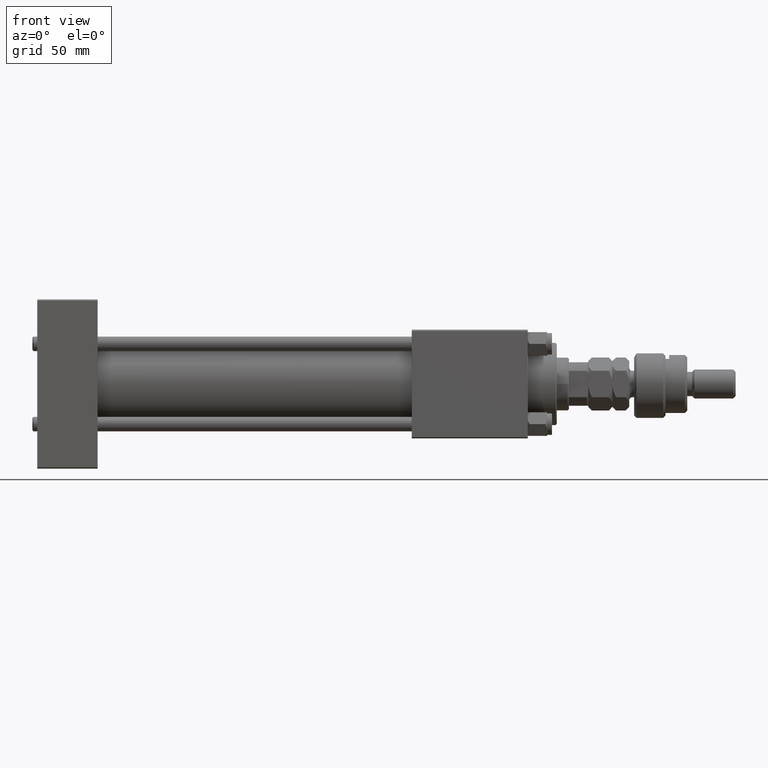
[diagram: clean part render]
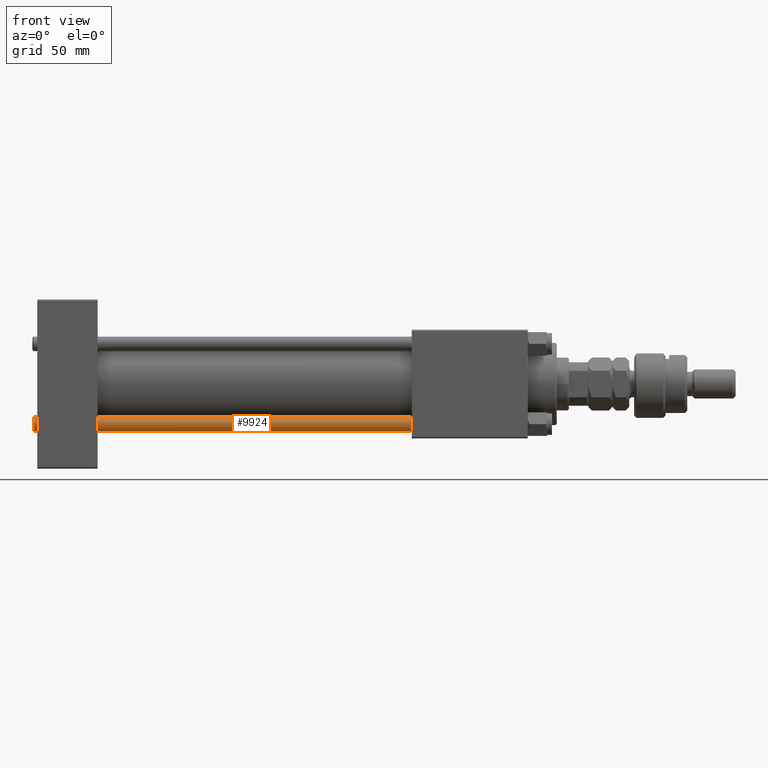
[diagram: same view with one face highlighted and labeled with its STEP entity id]
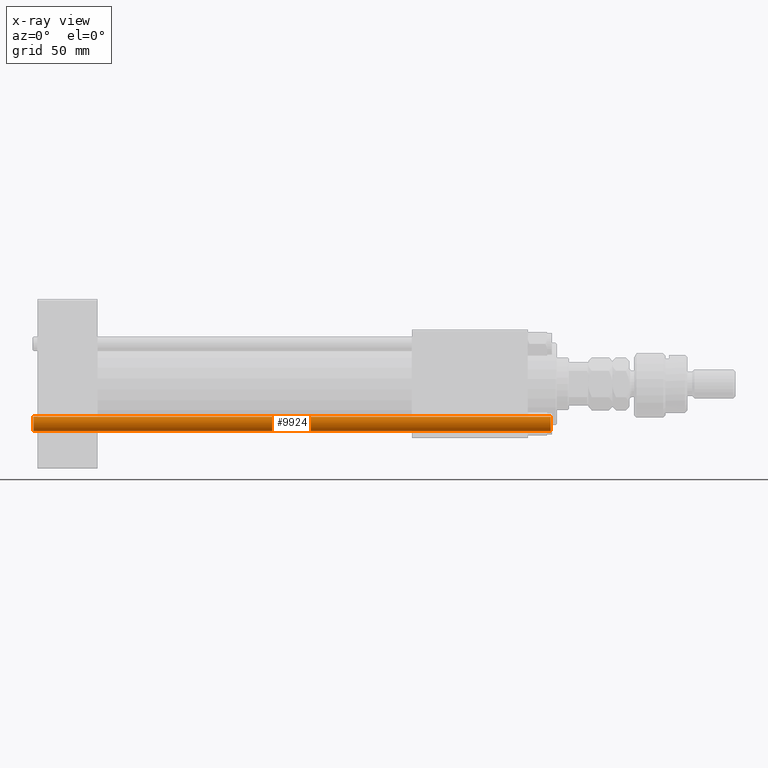
[diagram: x-ray of the same camera — body ghosted, the highlighted face saturated]
A machine part, front view. The second image highlights one B-rep face of the part: STEP entity #9924.
The next image is the same camera in x-ray: the body ghosted, the highlighted face saturated — about 0% of this face is hidden behind the body in this view.
In plain terms, the highlighted cylindrical surface (edge-blend (fillet) strip) has radius 3 mm, axis along (1, -0, -0).
Its self-contained STEP definition (entity closure, byte-faithful):
#524 = ORIENTED_EDGE ( 'NONE', *, *, #17818, .F. ) ;
#3809 = CARTESIAN_POINT ( 'NONE',  ( 3.000000000000000444, 3.673940397442060361E-16, 214.5000000000000000 ) ) ;
#4726 = DIRECTION ( 'NONE',  ( -0.000000000000000000, -0.000000000000000000, 1.000000000000000000 ) ) ;
#6153 = EDGE_CURVE ( 'NONE', #12154, #14172, #27921, .T. ) ;
#9924 = ADVANCED_FACE ( 'NONE', ( #25511 ), #20455, .T. ) ;
#11975 = VERTEX_POINT ( 'NONE', #31442 ) ;
#12154 = VERTEX_POINT ( 'NONE', #50849 ) ;
#13320 = CARTESIAN_POINT ( 'NONE',  ( 3.000000000000000444, 3.673940397442060361E-16, 215.0000000000000000 ) ) ;
#14172 = VERTEX_POINT ( 'NONE', #21910 ) ;
#17557 = ORIENTED_EDGE ( 'NONE', *, *, #43643, .T. ) ;
#17818 = EDGE_CURVE ( 'NONE', #22647, #14172, #24553, .T. ) ;
#18241 = VECTOR ( 'NONE', #41212, 1000.000000000000000 ) ;
#18503 = CARTESIAN_POINT ( 'NONE',  ( 0.000000000000000000, 0.000000000000000000, 214.5000000000000000 ) ) ;
#20455 = CYLINDRICAL_SURFACE ( 'NONE', #24641, 3.000000000000000444 ) ;
#21910 = CARTESIAN_POINT ( 'NONE',  ( 3.000000000000000444, 3.673940397442060361E-16, 0.5000000000000559552 ) ) ;
#22647 = VERTEX_POINT ( 'NONE', #3809 ) ;
#22759 = DIRECTION ( 'NONE',  ( 0.000000000000000000, 0.000000000000000000, -1.000000000000000000 ) ) ;
#24528 = AXIS2_PLACEMENT_3D ( 'NONE', #45824, #4726, #24748 ) ;
#24553 = LINE ( 'NONE', #13320, #30785 ) ;
#24641 = AXIS2_PLACEMENT_3D ( 'NONE', #24971, #37797, #25242 ) ;
#24748 = DIRECTION ( 'NONE',  ( 1.000000000000000000, 0.000000000000000000, 0.000000000000000000 ) ) ;
#24971 = CARTESIAN_POINT ( 'NONE',  ( 0.000000000000000000, 0.000000000000000000, 215.0000000000000000 ) ) ;
#25242 = DIRECTION ( 'NONE',  ( -1.000000000000000000, 0.000000000000000000, 0.000000000000000000 ) ) ;
#25511 = FACE_OUTER_BOUND ( 'NONE', #38383, .T. ) ;
#26845 = AXIS2_PLACEMENT_3D ( 'NONE', #18503, #22759, #30520 ) ;
#27921 = CIRCLE ( 'NONE', #24528, 3.000000000000000444 ) ;
#28098 = ORIENTED_EDGE ( 'NONE', *, *, #6153, .T. ) ;
#28411 = LINE ( 'NONE', #48944, #18241 ) ;
#29035 = ORIENTED_EDGE ( 'NONE', *, *, #37214, .T. ) ;
#30520 = DIRECTION ( 'NONE',  ( 1.000000000000000000, 0.000000000000000000, 0.000000000000000000 ) ) ;
#30785 = VECTOR ( 'NONE', #45615, 1000.000000000000000 ) ;
#31442 = CARTESIAN_POINT ( 'NONE',  ( -3.000000000000000444, 0.000000000000000000, 214.5000000000000000 ) ) ;
#37214 = EDGE_CURVE ( 'NONE', #11975, #12154, #28411, .T. ) ;
#37797 = DIRECTION ( 'NONE',  ( -0.000000000000000000, -0.000000000000000000, -1.000000000000000000 ) ) ;
#38383 = EDGE_LOOP ( 'NONE', ( #524, #17557, #29035, #28098 ) ) ;
#41212 = DIRECTION ( 'NONE',  ( -0.000000000000000000, -0.000000000000000000, -1.000000000000000000 ) ) ;
#43643 = EDGE_CURVE ( 'NONE', #22647, #11975, #46459, .T. ) ;
#45615 = DIRECTION ( 'NONE',  ( -0.000000000000000000, -0.000000000000000000, -1.000000000000000000 ) ) ;
#45824 = CARTESIAN_POINT ( 'NONE',  ( 0.000000000000000000, 0.000000000000000000, 0.5000000000000559552 ) ) ;
#46459 = CIRCLE ( 'NONE', #26845, 3.000000000000000444 ) ;
#48944 = CARTESIAN_POINT ( 'NONE',  ( -3.000000000000000444, 0.000000000000000000, 215.0000000000000000 ) ) ;
#50849 = CARTESIAN_POINT ( 'NONE',  ( -3.000000000000000444, 0.000000000000000000, 0.5000000000000559552 ) ) ;